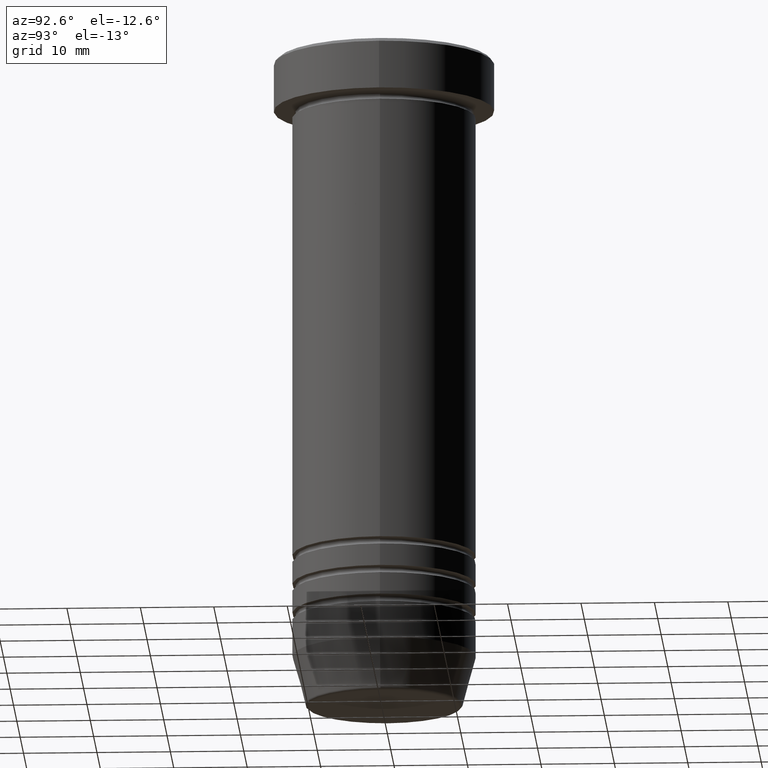
[diagram: clean part render]
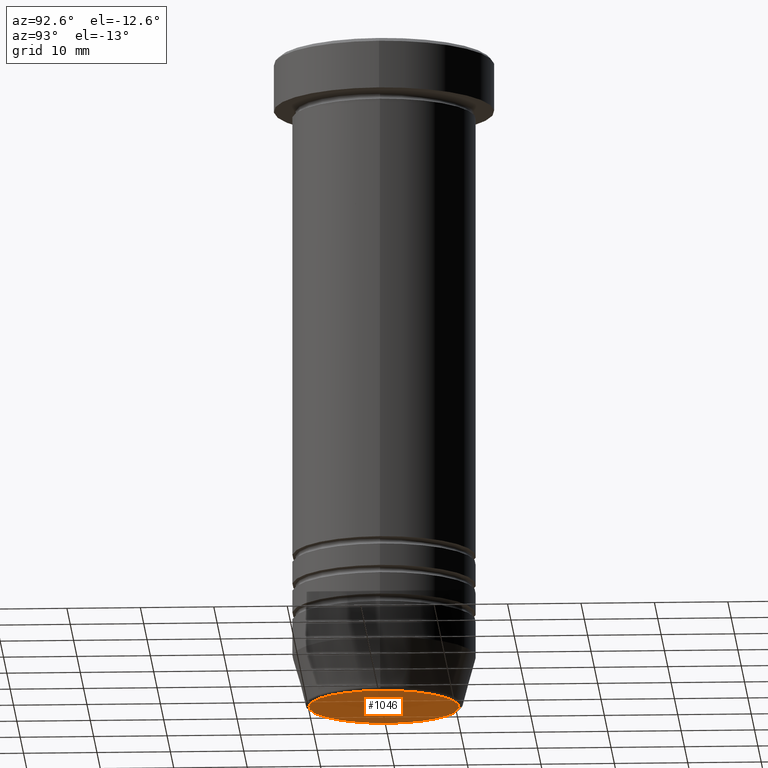
[diagram: same view with one face highlighted and labeled with its STEP entity id]
A machine part, auxiliary view. The second image highlights one B-rep face of the part: STEP entity #1046.
In plain terms, the highlighted planar face has unit normal (0, -0, 1).
Its self-contained STEP definition (entity closure, byte-faithful):
#45 = AXIS2_PLACEMENT_3D ( 'NONE', #977, #324, #647 ) ;
#145 = FACE_OUTER_BOUND ( 'NONE', #359, .T. ) ;
#156 = DIRECTION ( 'NONE',  ( 1.000000000000000000, 0.000000000000000000, 0.000000000000000000 ) ) ;
#212 = DIRECTION ( 'NONE',  ( 1.000000000000000000, 0.000000000000000000, 0.000000000000000000 ) ) ;
#234 = EDGE_CURVE ( 'NONE', #259, #913, #720, .T. ) ;
#259 = VERTEX_POINT ( 'NONE', #856 ) ;
#324 = DIRECTION ( 'NONE',  ( 0.000000000000000000, 0.000000000000000000, -1.000000000000000000 ) ) ;
#359 = EDGE_LOOP ( 'NONE', ( #385, #840 ) ) ;
#385 = ORIENTED_EDGE ( 'NONE', *, *, #234, .T. ) ;
#419 = DIRECTION ( 'NONE',  ( 0.000000000000000000, 0.000000000000000000, -1.000000000000000000 ) ) ;
#511 = AXIS2_PLACEMENT_3D ( 'NONE', #897, #644, #156 ) ;
#559 = CIRCLE ( 'NONE', #968, 10.24069215899265473 ) ;
#594 = CARTESIAN_POINT ( 'NONE',  ( 0.000000000000000000, 0.000000000000000000, -90.00000000000000000 ) ) ;
#619 = CARTESIAN_POINT ( 'NONE',  ( -10.24069215899265473, 1.283696036640841784E-15, -90.00000000000000000 ) ) ;
#644 = DIRECTION ( 'NONE',  ( 0.000000000000000000, -0.000000000000000000, 1.000000000000000000 ) ) ;
#647 = DIRECTION ( 'NONE',  ( 1.000000000000000000, 0.000000000000000000, 0.000000000000000000 ) ) ;
#668 = EDGE_CURVE ( 'NONE', #913, #259, #559, .T. ) ;
#720 = CIRCLE ( 'NONE', #45, 10.24069215899265473 ) ;
#840 = ORIENTED_EDGE ( 'NONE', *, *, #668, .T. ) ;
#856 = CARTESIAN_POINT ( 'NONE',  ( 10.24069215899265473, 0.000000000000000000, -90.00000000000000000 ) ) ;
#897 = CARTESIAN_POINT ( 'NONE',  ( 0.000000000000000000, 4.898587196589412237E-15, -90.00000000000000000 ) ) ;
#913 = VERTEX_POINT ( 'NONE', #619 ) ;
#968 = AXIS2_PLACEMENT_3D ( 'NONE', #594, #419, #212 ) ;
#977 = CARTESIAN_POINT ( 'NONE',  ( 0.000000000000000000, 0.000000000000000000, -90.00000000000000000 ) ) ;
#1034 = PLANE ( 'NONE',  #511 ) ;
#1046 = ADVANCED_FACE ( 'NONE', ( #145 ), #1034, .F. ) ;